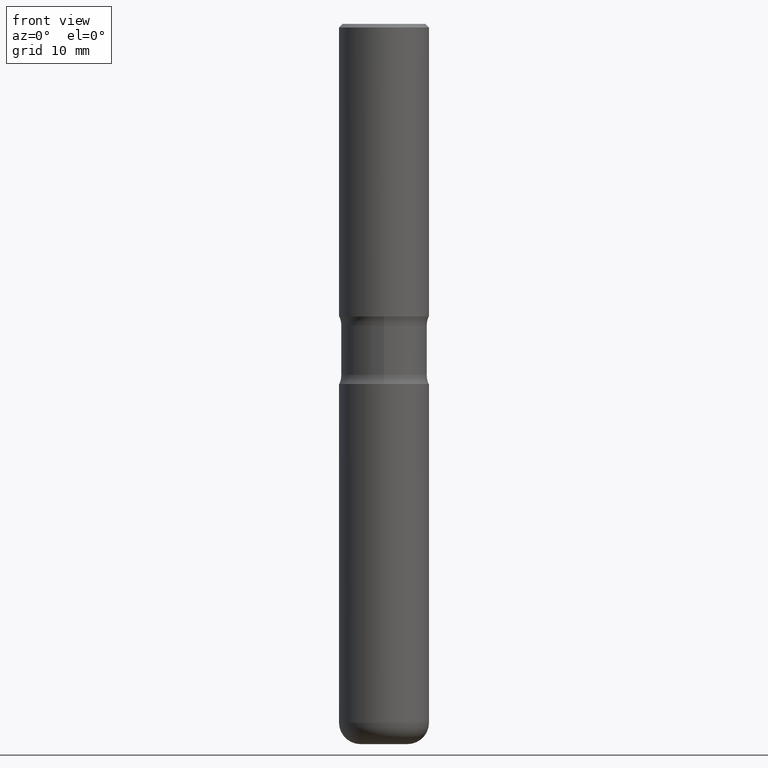
[diagram: clean part render]
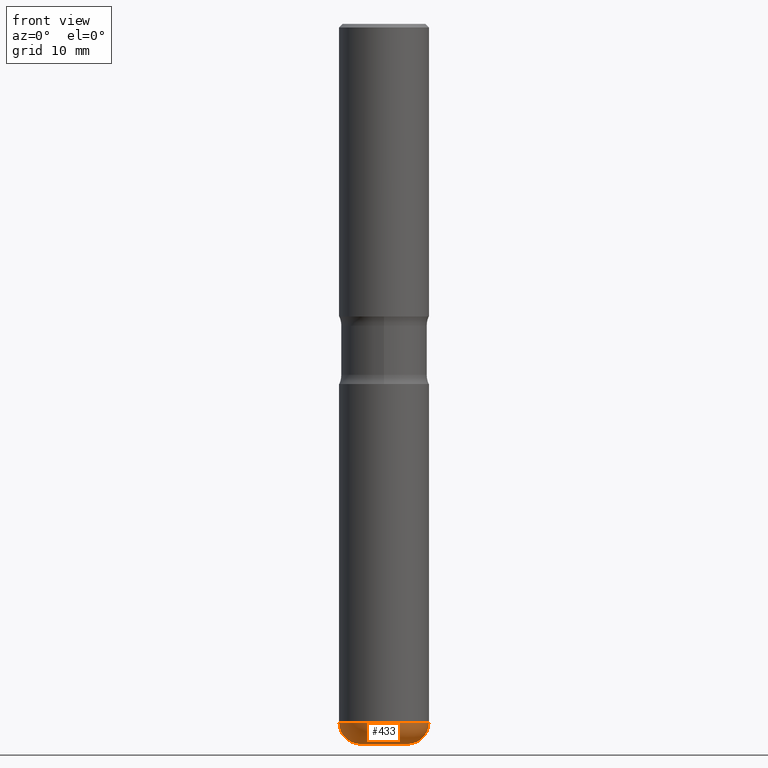
[diagram: same view with one face highlighted and labeled with its STEP entity id]
A machine part, front view. The second image highlights one B-rep face of the part: STEP entity #433.
In plain terms, the highlighted toroidal blend (fillet) surface has major radius 3.302 mm and minor (blend) radius 3.048 mm.
Its self-contained STEP definition (entity closure, byte-faithful):
#24 = DIRECTION ( 'NONE',  ( 1.000000000000000000, -6.982962677686272233E-15, 0.000000000000000000 ) ) ;
#26 = ORIENTED_EDGE ( 'NONE', *, *, #124, .T. ) ;
#28 = DIRECTION ( 'NONE',  ( 7.105427357601001859E-15, 1.000000000000000000, -3.491481338843145583E-15 ) ) ;
#66 = FACE_OUTER_BOUND ( 'NONE', #217, .T. ) ;
#85 = TOROIDAL_SURFACE ( 'NONE', #405, 0.1300000000000006151, 0.1199999999999999123 ) ;
#86 = EDGE_CURVE ( 'NONE', #457, #347, #157, .T. ) ;
#123 = ORIENTED_EDGE ( 'NONE', *, *, #307, .F. ) ;
#124 = EDGE_CURVE ( 'NONE', #374, #247, #229, .T. ) ;
#146 = AXIS2_PLACEMENT_3D ( 'NONE', #546, #314, #24 ) ;
#157 = CIRCLE ( 'NONE', #395, 0.1199999999999999262 ) ;
#162 = EDGE_CURVE ( 'NONE', #457, #374, #267, .T. ) ;
#174 = CIRCLE ( 'NONE', #448, 0.2500000000000006106 ) ;
#217 = EDGE_LOOP ( 'NONE', ( #557, #482, #26, #123 ) ) ;
#229 = CIRCLE ( 'NONE', #146, 0.1199999999999999262 ) ;
#247 = VERTEX_POINT ( 'NONE', #400 ) ;
#252 = DIRECTION ( 'NONE',  ( -2.445468806185136597E-29, 3.491481338843145583E-15, 1.000000000000000000 ) ) ;
#267 = CIRCLE ( 'NONE', #454, 0.1300000000000006151 ) ;
#307 = EDGE_CURVE ( 'NONE', #347, #247, #174, .T. ) ;
#313 = CARTESIAN_POINT ( 'NONE',  ( -0.2500000000000005551, -1.177059075531115839E-14, -3.880000000000001670 ) ) ;
#314 = DIRECTION ( 'NONE',  ( -6.982962677686266711E-15, -1.000000000000000000, 3.491481338843145583E-15 ) ) ;
#316 = DIRECTION ( 'NONE',  ( -2.445468806185136597E-29, 3.491481338843145583E-15, 1.000000000000000000 ) ) ;
#347 = VERTEX_POINT ( 'NONE', #313 ) ;
#367 = DIRECTION ( 'NONE',  ( 1.000000000000000000, -6.982962677686269866E-15, 0.000000000000000000 ) ) ;
#370 = DIRECTION ( 'NONE',  ( 1.000000000000000000, -6.982962677686269077E-15, 0.000000000000000000 ) ) ;
#374 = VERTEX_POINT ( 'NONE', #501 ) ;
#376 = DIRECTION ( 'NONE',  ( -1.000000000000000000, 7.105427357600995548E-15, 0.000000000000000000 ) ) ;
#395 = AXIS2_PLACEMENT_3D ( 'NONE', #421, #28, #376 ) ;
#400 = CARTESIAN_POINT ( 'NONE',  ( 0.2500000000000005551, -1.529268826413298342E-14, -3.880000000000001670 ) ) ;
#405 = AXIS2_PLACEMENT_3D ( 'NONE', #547, #508, #450 ) ;
#421 = CARTESIAN_POINT ( 'NONE',  ( -0.1300000000000006151, -1.262324203822327779E-14, -3.880000000000001670 ) ) ;
#433 = ADVANCED_FACE ( 'NONE', ( #66 ), #85, .T. ) ;
#448 = AXIS2_PLACEMENT_3D ( 'NONE', #540, #316, #370 ) ;
#450 = DIRECTION ( 'NONE',  ( 1.000000000000000000, -6.982962677686263555E-15, 4.883557194083111780E-29 ) ) ;
#454 = AXIS2_PLACEMENT_3D ( 'NONE', #481, #252, #367 ) ;
#457 = VERTEX_POINT ( 'NONE', #478 ) ;
#478 = CARTESIAN_POINT ( 'NONE',  ( -0.1300000000000006151, -1.240640527709780719E-14, -4.000000000000001776 ) ) ;
#481 = CARTESIAN_POINT ( 'NONE',  ( 9.781875224740550871E-29, -1.396592535537258864E-14, -4.000000000000001776 ) ) ;
#482 = ORIENTED_EDGE ( 'NONE', *, *, #162, .T. ) ;
#501 = CARTESIAN_POINT ( 'NONE',  ( 0.1300000000000006151, -1.487371050347180678E-14, -4.000000000000001776 ) ) ;
#508 = DIRECTION ( 'NONE',  ( -2.445468806185136597E-29, 3.491481338843145583E-15, 1.000000000000000000 ) ) ;
#540 = CARTESIAN_POINT ( 'NONE',  ( 9.488418967998333448E-29, -1.354694759471141201E-14, -3.880000000000001670 ) ) ;
#546 = CARTESIAN_POINT ( 'NONE',  ( 0.1300000000000006151, -1.445473274281063015E-14, -3.880000000000001670 ) ) ;
#547 = CARTESIAN_POINT ( 'NONE',  ( 9.488418967998333448E-29, -1.354694759471141201E-14, -3.880000000000001670 ) ) ;
#557 = ORIENTED_EDGE ( 'NONE', *, *, #86, .F. ) ;